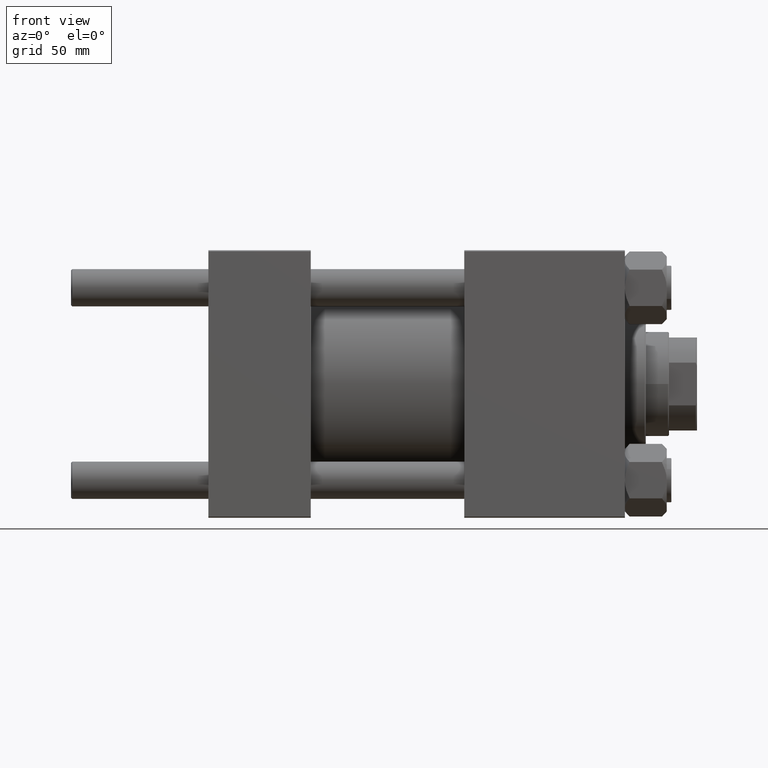
[diagram: clean part render]
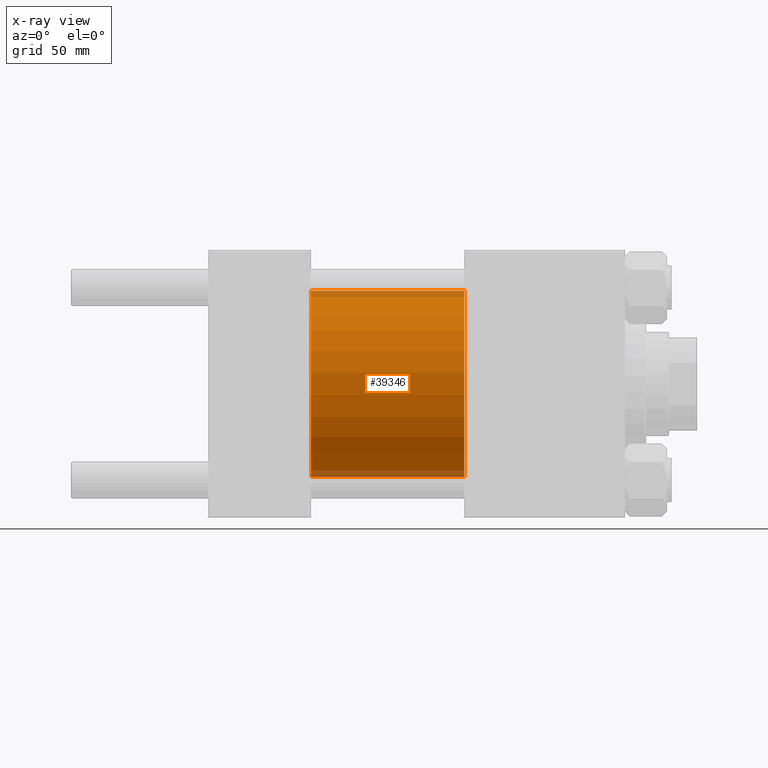
[diagram: x-ray — body ghosted, one internal face saturated and labeled with its STEP entity id]
A machine part, front view, then the same camera in x-ray: the body is ghosted and one INTERNAL B-rep face — a face not visible from any outside direction — is saturated and labeled: STEP entity #39346.
In plain terms, the highlighted cylindrical surface (partial cylindrical patch) has radius 40 mm, axis along (-1, -0, -0).
Its self-contained STEP definition (entity closure, byte-faithful):
#2416 = CARTESIAN_POINT ( 'NONE',  ( 110.0000000000000000, 0.000000000000000000, 40.00000000000000000 ) ) ;
#2857 = VERTEX_POINT ( 'NONE', #27926 ) ;
#3682 = VERTEX_POINT ( 'NONE', #9225 ) ;
#5321 = ORIENTED_EDGE ( 'NONE', *, *, #37729, .F. ) ;
#6372 = VECTOR ( 'NONE', #9528, 1000.000000000000000 ) ;
#6658 = AXIS2_PLACEMENT_3D ( 'NONE', #41131, #10649, #9908 ) ;
#8213 = DIRECTION ( 'NONE',  ( 0.000000000000000000, 0.000000000000000000, -1.000000000000000000 ) ) ;
#8765 = DIRECTION ( 'NONE',  ( 0.000000000000000000, 0.000000000000000000, -1.000000000000000000 ) ) ;
#9225 = CARTESIAN_POINT ( 'NONE',  ( 44.00000000000000000, 4.898587196589413026E-15, -40.00000000000000000 ) ) ;
#9528 = DIRECTION ( 'NONE',  ( -1.000000000000000000, -0.000000000000000000, -0.000000000000000000 ) ) ;
#9908 = DIRECTION ( 'NONE',  ( 0.000000000000000000, 0.000000000000000000, 1.000000000000000000 ) ) ;
#10649 = DIRECTION ( 'NONE',  ( -1.000000000000000000, -0.000000000000000000, -0.000000000000000000 ) ) ;
#14053 = ORIENTED_EDGE ( 'NONE', *, *, #27146, .F. ) ;
#14211 = CYLINDRICAL_SURFACE ( 'NONE', #6658, 40.00000000000000000 ) ;
#15116 = DIRECTION ( 'NONE',  ( -1.000000000000000000, -0.000000000000000000, -0.000000000000000000 ) ) ;
#15366 = CARTESIAN_POINT ( 'NONE',  ( 44.00000000000000000, 0.000000000000000000, 40.00000000000000000 ) ) ;
#16933 = EDGE_CURVE ( 'NONE', #2857, #3682, #17422, .T. ) ;
#17135 = LINE ( 'NONE', #2416, #6372 ) ;
#17422 = LINE ( 'NONE', #23515, #36095 ) ;
#21341 = FACE_OUTER_BOUND ( 'NONE', #38441, .T. ) ;
#23515 = CARTESIAN_POINT ( 'NONE',  ( 110.0000000000000000, 4.898587196589413026E-15, -40.00000000000000000 ) ) ;
#23807 = CIRCLE ( 'NONE', #43240, 40.00000000000000000 ) ;
#25268 = DIRECTION ( 'NONE',  ( 1.000000000000000000, 0.000000000000000000, 0.000000000000000000 ) ) ;
#27146 = EDGE_CURVE ( 'NONE', #50139, #30468, #17135, .T. ) ;
#27792 = CARTESIAN_POINT ( 'NONE',  ( 110.0000000000000000, 0.000000000000000000, 0.000000000000000000 ) ) ;
#27926 = CARTESIAN_POINT ( 'NONE',  ( 110.0000000000000000, 4.898587196589413026E-15, -40.00000000000000000 ) ) ;
#30468 = VERTEX_POINT ( 'NONE', #15366 ) ;
#34117 = ORIENTED_EDGE ( 'NONE', *, *, #16933, .T. ) ;
#34195 = AXIS2_PLACEMENT_3D ( 'NONE', #44545, #25268, #8765 ) ;
#36095 = VECTOR ( 'NONE', #15116, 1000.000000000000000 ) ;
#36149 = DIRECTION ( 'NONE',  ( 1.000000000000000000, 0.000000000000000000, 0.000000000000000000 ) ) ;
#37729 = EDGE_CURVE ( 'NONE', #30468, #3682, #43895, .T. ) ;
#38441 = EDGE_LOOP ( 'NONE', ( #46427, #34117, #5321, #14053 ) ) ;
#39346 = ADVANCED_FACE ( 'NONE', ( #21341 ), #14211, .F. ) ;
#41131 = CARTESIAN_POINT ( 'NONE',  ( 110.0000000000000000, 0.000000000000000000, 0.000000000000000000 ) ) ;
#42370 = EDGE_CURVE ( 'NONE', #50139, #2857, #23807, .T. ) ;
#43240 = AXIS2_PLACEMENT_3D ( 'NONE', #27792, #36149, #8213 ) ;
#43832 = CARTESIAN_POINT ( 'NONE',  ( 110.0000000000000000, 0.000000000000000000, 40.00000000000000000 ) ) ;
#43895 = CIRCLE ( 'NONE', #34195, 40.00000000000000000 ) ;
#44545 = CARTESIAN_POINT ( 'NONE',  ( 44.00000000000000000, 0.000000000000000000, 0.000000000000000000 ) ) ;
#46427 = ORIENTED_EDGE ( 'NONE', *, *, #42370, .T. ) ;
#50139 = VERTEX_POINT ( 'NONE', #43832 ) ;